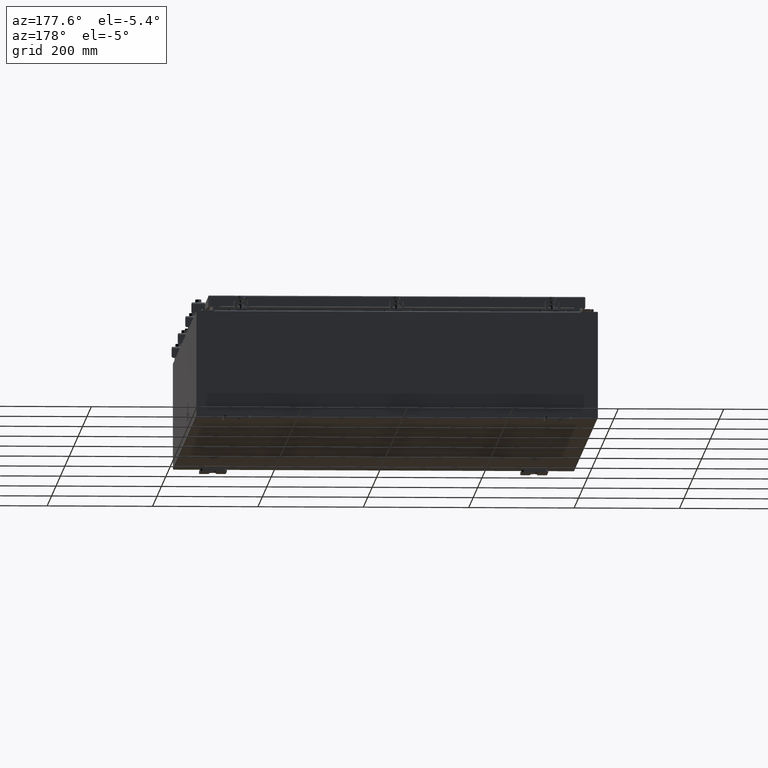
[diagram: clean part render]
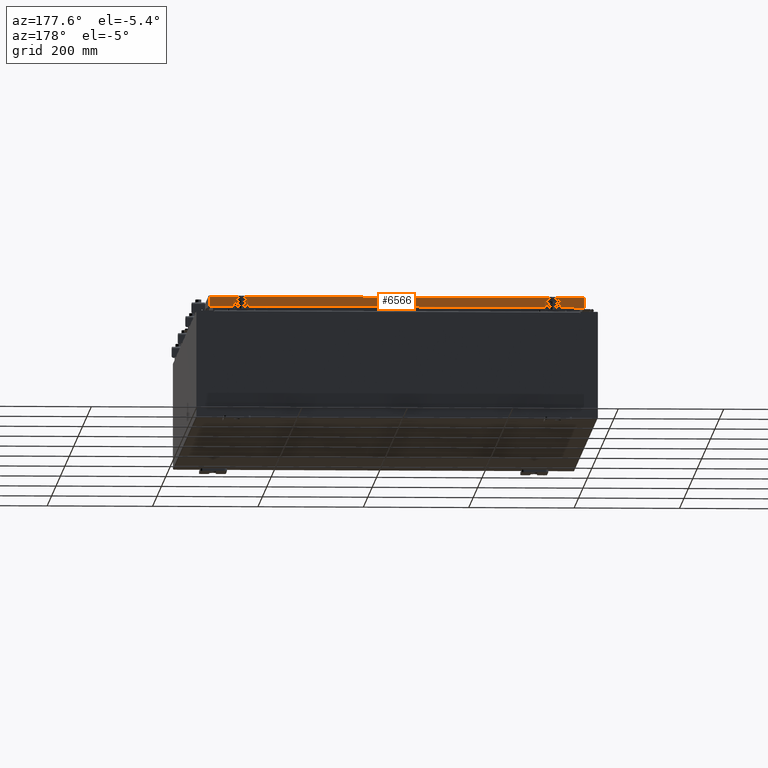
[diagram: same view with one face highlighted and labeled with its STEP entity id]
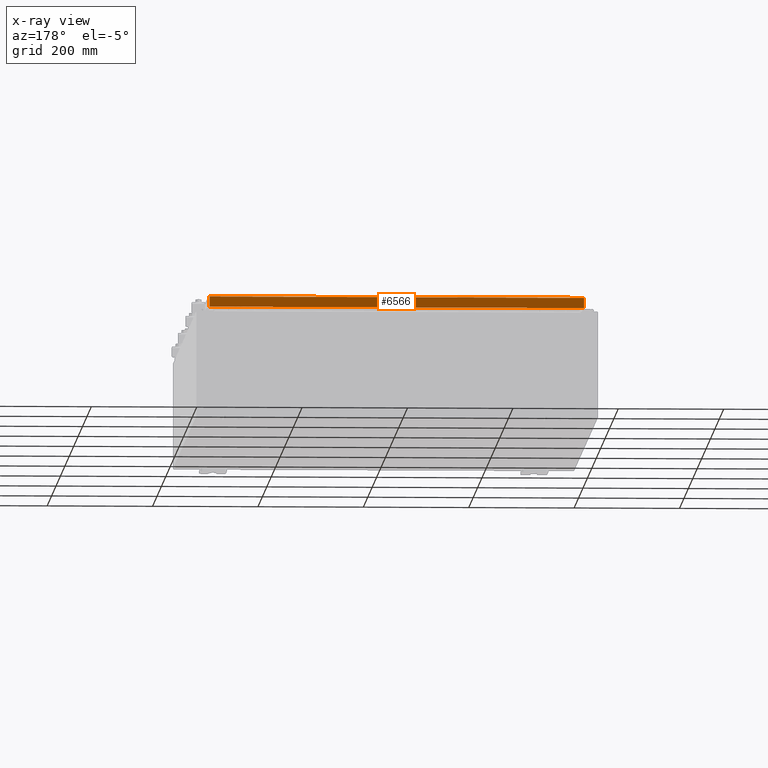
[diagram: x-ray of the same camera — body ghosted, the highlighted face saturated]
A machine part, auxiliary view. The second image highlights one B-rep face of the part: STEP entity #6566.
The next image is the same camera in x-ray: the body ghosted, the highlighted face saturated — about 0% of this face is hidden behind the body in this view.
In plain terms, the highlighted planar face has unit normal (0, -1, -0).
Its self-contained STEP definition (entity closure, byte-faithful):
#313 = EDGE_CURVE ( 'NONE', #33579, #26412, #24825, .T. ) ;
#341 = VERTEX_POINT ( 'NONE', #28684 ) ;
#1597 = DIRECTION ( 'NONE',  ( 0.0000000000000000000, 5.637761885544694200E-015, -1.000000000000000000 ) ) ;
#2454 = VECTOR ( 'NONE', #16335, 39.37007874015748100 ) ;
#3889 = VECTOR ( 'NONE', #19685, 39.37007874015748100 ) ;
#4086 = EDGE_CURVE ( 'NONE', #341, #33579, #7225, .T. ) ;
#6239 = CARTESIAN_POINT ( 'NONE',  ( -14.07799999999999800, 20.09400000000000800, -0.8500000000000032000 ) ) ;
#6566 = ADVANCED_FACE ( 'NONE', ( #21000 ), #41390, .F. ) ;
#7225 = LINE ( 'NONE', #31005, #25629 ) ;
#8492 = CARTESIAN_POINT ( 'NONE',  ( 13.23915786437626900, 20.09400000000000100, -0.8500000000000053100 ) ) ;
#11543 = ORIENTED_EDGE ( 'NONE', *, *, #16969, .F. ) ;
#12316 = ORIENTED_EDGE ( 'NONE', *, *, #31193, .F. ) ;
#12731 = CARTESIAN_POINT ( 'NONE',  ( -13.23915786437626400, 20.09400000000000100, -0.8500000000000053100 ) ) ;
#12803 = CARTESIAN_POINT ( 'NONE',  ( 13.98915786437626900, 20.09400000000000100, 1.135460009841466900E-013 ) ) ;
#14702 = AXIS2_PLACEMENT_3D ( 'NONE', #45763, #23667, #1597 ) ;
#16335 = DIRECTION ( 'NONE',  ( 0.0000000000000000000, 5.637761885544694200E-015, -1.000000000000000000 ) ) ;
#16969 = EDGE_CURVE ( 'NONE', #26412, #23873, #45392, .T. ) ;
#19685 = DIRECTION ( 'NONE',  ( 1.000000000000000000, -0.0000000000000000000, 1.261330583805775800E-016 ) ) ;
#20480 = VECTOR ( 'NONE', #26239, 39.37007874015748100 ) ;
#20883 = DIRECTION ( 'NONE',  ( 1.000000000000000000, -0.0000000000000000000, 1.261330583805775800E-016 ) ) ;
#21000 = FACE_OUTER_BOUND ( 'NONE', #36628, .T. ) ;
#21483 = CARTESIAN_POINT ( 'NONE',  ( 13.98915786437626900, 20.09400000000000800, -0.8499999999999996400 ) ) ;
#21498 = DIRECTION ( 'NONE',  ( -0.0000000000000000000, 5.637761885544694200E-015, -1.000000000000000000 ) ) ;
#22044 = LINE ( 'NONE', #12803, #2454 ) ;
#22054 = ORIENTED_EDGE ( 'NONE', *, *, #313, .F. ) ;
#22515 = CARTESIAN_POINT ( 'NONE',  ( -13.23915786437626900, 20.09400000000000100, -0.8500000000000053100 ) ) ;
#22597 = ORIENTED_EDGE ( 'NONE', *, *, #37914, .F. ) ;
#23667 = DIRECTION ( 'NONE',  ( 7.111081490452040100E-031, -1.000000000000000000, -5.637761885544694200E-015 ) ) ;
#23697 = VECTOR ( 'NONE', #21498, 39.37007874015748100 ) ;
#23767 = ORIENTED_EDGE ( 'NONE', *, *, #34718, .T. ) ;
#23873 = VERTEX_POINT ( 'NONE', #12731 ) ;
#24825 = LINE ( 'NONE', #32646, #23697 ) ;
#25629 = VECTOR ( 'NONE', #34709, 39.37007874015748100 ) ;
#26239 = DIRECTION ( 'NONE',  ( 1.000000000000000000, -0.0000000000000000000, -0.0000000000000000000 ) ) ;
#26412 = VERTEX_POINT ( 'NONE', #41324 ) ;
#28265 = VERTEX_POINT ( 'NONE', #8492 ) ;
#28684 = CARTESIAN_POINT ( 'NONE',  ( 13.98915786437626900, 20.09400000000000100, -0.08769999999999547600 ) ) ;
#30315 = LINE ( 'NONE', #22515, #20480 ) ;
#31005 = CARTESIAN_POINT ( 'NONE',  ( -14.07799999999999800, 20.09400000000000100, -0.08769999999999547600 ) ) ;
#31193 = EDGE_CURVE ( 'NONE', #23873, #28265, #30315, .T. ) ;
#32294 = ORIENTED_EDGE ( 'NONE', *, *, #4086, .F. ) ;
#32646 = CARTESIAN_POINT ( 'NONE',  ( -13.98915786437626700, 20.09400000000000100, -0.07469999999999958600 ) ) ;
#33579 = VERTEX_POINT ( 'NONE', #44351 ) ;
#33860 = LINE ( 'NONE', #6239, #42484 ) ;
#34709 = DIRECTION ( 'NONE',  ( -1.000000000000000000, -7.111081490452041800E-031, -3.990986016271606400E-045 ) ) ;
#34718 = EDGE_CURVE ( 'NONE', #341, #45585, #22044, .T. ) ;
#36628 = EDGE_LOOP ( 'NONE', ( #32294, #23767, #22597, #12316, #11543, #22054 ) ) ;
#37914 = EDGE_CURVE ( 'NONE', #28265, #45585, #33860, .T. ) ;
#37927 = CARTESIAN_POINT ( 'NONE',  ( -14.07799999999999800, 20.09400000000000800, -0.8500000000000032000 ) ) ;
#41324 = CARTESIAN_POINT ( 'NONE',  ( -13.98915786437626700, 20.09400000000000800, -0.8500000000000032000 ) ) ;
#41390 = PLANE ( 'NONE',  #14702 ) ;
#42484 = VECTOR ( 'NONE', #20883, 39.37007874015748100 ) ;
#44351 = CARTESIAN_POINT ( 'NONE',  ( -13.98915786437626900, 20.09400000000000100, -0.08769999999999549000 ) ) ;
#45392 = LINE ( 'NONE', #37927, #3889 ) ;
#45585 = VERTEX_POINT ( 'NONE', #21483 ) ;
#45763 = CARTESIAN_POINT ( 'NONE',  ( -1.428900714691433000E-029, 20.09400000000000100, 1.135460009841466900E-013 ) ) ;